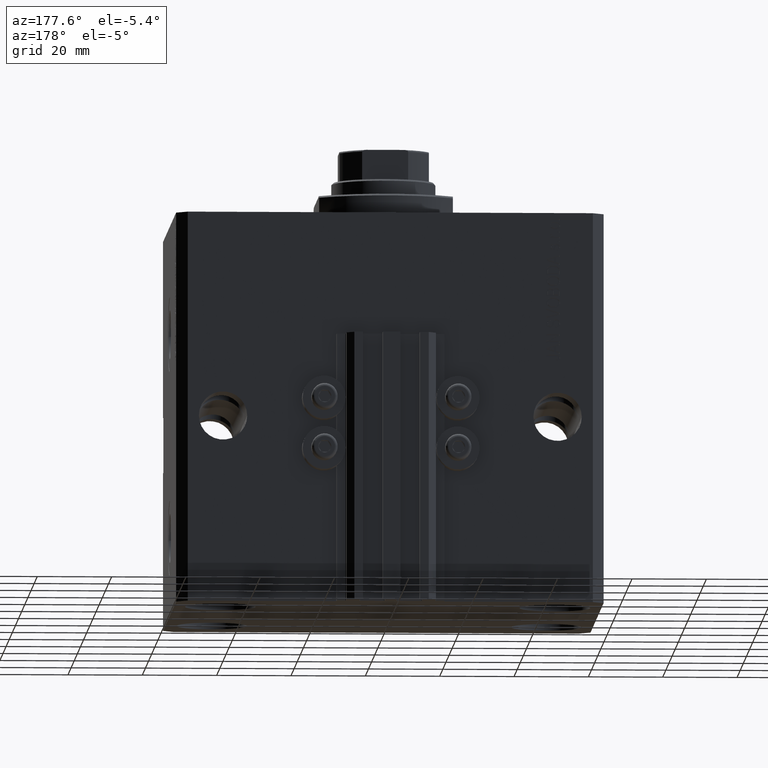
[diagram: clean part render]
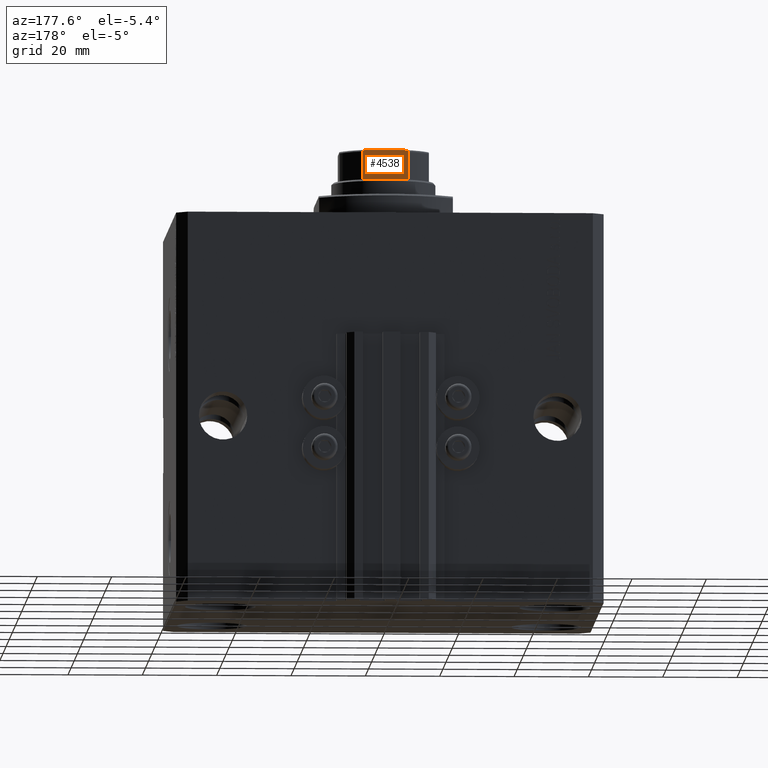
[diagram: same view with one face highlighted and labeled with its STEP entity id]
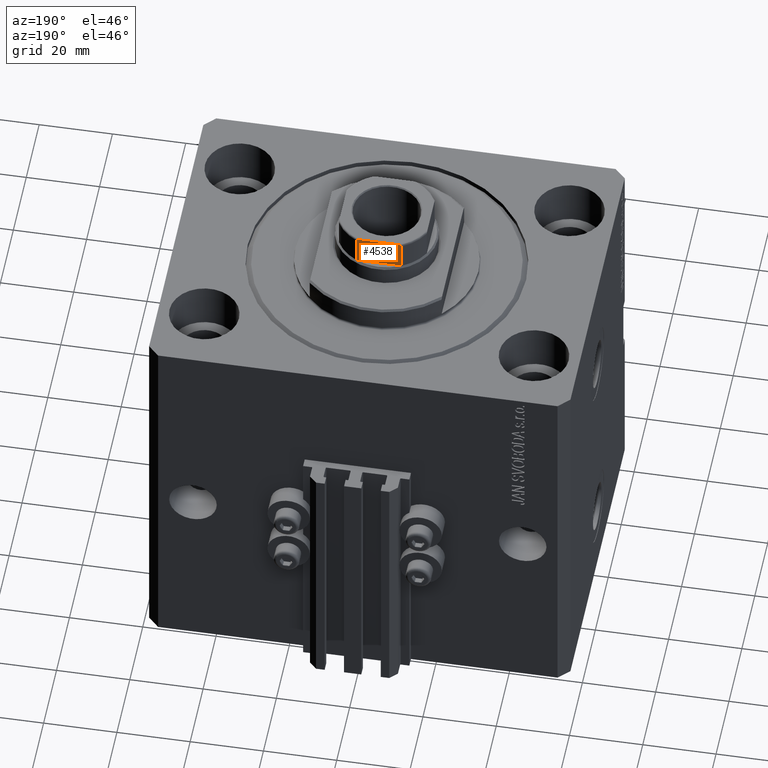
[diagram: same view with one face highlighted and labeled with its STEP entity id]
A machine part, auxiliary view. The second image highlights one B-rep face of the part: STEP entity #4538.
A second angle (auxiliary view) of the same face is appended — the face is thin or edge-on in the first view.
In plain terms, the highlighted planar face has unit normal (0, -1, 0).
Its self-contained STEP definition (entity closure, byte-faithful):
#2379 = CARTESIAN_POINT ( 'NONE',  ( -6.184658438426490434, 12.00000000000000000, -0.001000000000001000089 ) ) ;
#2707 = DIRECTION ( 'NONE',  ( 7.228014483236695816E-17, -1.000000000000000000, 0.000000000000000000 ) ) ;
#2750 = B_SPLINE_CURVE_WITH_KNOTS ( 'NONE', 3,
 ( #36997, #18086, #19783, #23264, #46151, #26517, #49156, #16053, #38441, #30733 ),
 .UNSPECIFIED., .F., .F.,
 ( 4, 2, 2, 2, 4 ),
 ( 1.734723475976807094E-18, 0.0006877128613558521411, 0.001031569292033771706, 0.001203497507372732573, 0.001375425722711693440 ),
 .UNSPECIFIED. ) ;
#3654 = VERTEX_POINT ( 'NONE', #20246 ) ;
#4538 = ADVANCED_FACE ( 'NONE', ( #45881 ), #44726, .F. ) ;
#6316 = CARTESIAN_POINT ( 'NONE',  ( -6.184658438426490434, 12.00000000000000000, 106.5999999999999943 ) ) ;
#6809 = CARTESIAN_POINT ( 'NONE',  ( -5.230795946637842420, 11.99999999999999645, 107.0999999999999943 ) ) ;
#7110 = VECTOR ( 'NONE', #39646, 1000.000000000000000 ) ;
#7112 = LINE ( 'NONE', #7600, #22533 ) ;
#7600 = CARTESIAN_POINT ( 'NONE',  ( -11.99999999999999822, 11.99999999999999822, 107.0999999999999943 ) ) ;
#7714 = ORIENTED_EDGE ( 'NONE', *, *, #8194, .T. ) ;
#8194 = EDGE_CURVE ( 'NONE', #24955, #40208, #36466, .T. ) ;
#9061 = CARTESIAN_POINT ( 'NONE',  ( -5.792513940493508429, 11.99999999999999822, 106.9846382036009373 ) ) ;
#9101 = DIRECTION ( 'NONE',  ( -0.000000000000000000, -0.000000000000000000, 1.000000000000000000 ) ) ;
#12787 = CARTESIAN_POINT ( 'NONE',  ( -6.046414714222231979, 11.99999999999999822, 106.8457872300293019 ) ) ;
#13298 = ORIENTED_EDGE ( 'NONE', *, *, #17869, .T. ) ;
#14033 = CARTESIAN_POINT ( 'NONE',  ( -5.000000000000001776, 11.99999999999999822, 107.0999999999999943 ) ) ;
#14505 = CARTESIAN_POINT ( 'NONE',  ( -5.458892612163326774, 11.99999999999999822, 107.0796099716497736 ) ) ;
#16053 = CARTESIAN_POINT ( 'NONE',  ( 6.160856115322540738, 12.00000000000000355, 106.7149782197479055 ) ) ;
#16525 = CARTESIAN_POINT ( 'NONE',  ( -6.161088279078732910, 12.00000000000000000, 106.7146234191510104 ) ) ;
#17869 = EDGE_CURVE ( 'NONE', #40208, #43715, #21471, .T. ) ;
#18086 = CARTESIAN_POINT ( 'NONE',  ( 5.230809753656818550, 11.99999999999999289, 107.0999999999999801 ) ) ;
#18198 = VECTOR ( 'NONE', #23213, 1000.000000000000000 ) ;
#19393 = ORIENTED_EDGE ( 'NONE', *, *, #22987, .T. ) ;
#19783 = CARTESIAN_POINT ( 'NONE',  ( 5.459934723612541951, 12.00000000000000000, 107.0794964115812036 ) ) ;
#20246 = CARTESIAN_POINT ( 'NONE',  ( 6.184658438426492211, 12.00000000000000178, 99.10000000000006537 ) ) ;
#20258 = LINE ( 'NONE', #24227, #7110 ) ;
#21471 = B_SPLINE_CURVE_WITH_KNOTS ( 'NONE', 3,
 ( #6316, #21488, #16525, #46863, #12787, #43131, #9061, #14505, #6809, #14033 ),
 .UNSPECIFIED., .F., .F.,
 ( 4, 2, 2, 2, 4 ),
 ( 0.000000000000000000, 0.0001740189231935435705, 0.0003480378463870871411, 0.0006960756927741721138, 0.001392151385548330567 ),
 .UNSPECIFIED. ) ;
#21488 = CARTESIAN_POINT ( 'NONE',  ( -6.184658438426491323, 12.00000000000000000, 106.6589344020393924 ) ) ;
#22123 = CARTESIAN_POINT ( 'NONE',  ( 5.000000000000002665, 12.00000000000000000, 107.0999999999999943 ) ) ;
#22533 = VECTOR ( 'NONE', #33982, 1000.000000000000000 ) ;
#22927 = CARTESIAN_POINT ( 'NONE',  ( -6.184658438426488658, 12.00000000000000000, 99.10000000000006537 ) ) ;
#22987 = EDGE_CURVE ( 'NONE', #29371, #41970, #2750, .T. ) ;
#23213 = DIRECTION ( 'NONE',  ( -0.000000000000000000, -0.000000000000000000, 1.000000000000000000 ) ) ;
#23236 = DIRECTION ( 'NONE',  ( 1.000000000000000000, 7.228014483236695816E-17, 0.000000000000000000 ) ) ;
#23264 = CARTESIAN_POINT ( 'NONE',  ( 5.793822051191360956, 11.99999999999999822, 106.9841735219943359 ) ) ;
#24227 = CARTESIAN_POINT ( 'NONE',  ( -11.99999999999999822, 11.99999999999999822, 99.09999999999999432 ) ) ;
#24955 = VERTEX_POINT ( 'NONE', #22927 ) ;
#26065 = CARTESIAN_POINT ( 'NONE',  ( -6.184658438426490434, 12.00000000000000000, 106.5999999999999943 ) ) ;
#26517 = CARTESIAN_POINT ( 'NONE',  ( 6.045866546018598520, 12.00000000000000178, 106.8461068616299485 ) ) ;
#28836 = AXIS2_PLACEMENT_3D ( 'NONE', #37032, #2707, #23236 ) ;
#29067 = VECTOR ( 'NONE', #9101, 1000.000000000000000 ) ;
#29371 = VERTEX_POINT ( 'NONE', #22123 ) ;
#29712 = EDGE_CURVE ( 'NONE', #3654, #41970, #29718, .T. ) ;
#29718 = LINE ( 'NONE', #45858, #18198 ) ;
#30733 = CARTESIAN_POINT ( 'NONE',  ( 6.184658438426490434, 11.99999999999999822, 106.5999999999999943 ) ) ;
#32449 = CARTESIAN_POINT ( 'NONE',  ( 6.184658438426490434, 11.99999999999999822, 106.5999999999999943 ) ) ;
#32883 = EDGE_CURVE ( 'NONE', #3654, #24955, #20258, .T. ) ;
#33227 = ORIENTED_EDGE ( 'NONE', *, *, #32883, .T. ) ;
#33982 = DIRECTION ( 'NONE',  ( -1.000000000000000000, -7.228014483236695816E-17, -0.000000000000000000 ) ) ;
#35319 = EDGE_LOOP ( 'NONE', ( #47409, #19393, #41093, #33227, #7714, #13298 ) ) ;
#36466 = LINE ( 'NONE', #2379, #29067 ) ;
#36997 = CARTESIAN_POINT ( 'NONE',  ( 5.000000000000002665, 12.00000000000000000, 107.0999999999999943 ) ) ;
#37032 = CARTESIAN_POINT ( 'NONE',  ( -11.99999999999999822, 11.99999999999999822, 107.0999999999999943 ) ) ;
#38441 = CARTESIAN_POINT ( 'NONE',  ( 6.184658438426495763, 12.00000000000000355, 106.6589821493407584 ) ) ;
#39646 = DIRECTION ( 'NONE',  ( -1.000000000000000000, -7.228014483236695816E-17, -0.000000000000000000 ) ) ;
#40208 = VERTEX_POINT ( 'NONE', #26065 ) ;
#41093 = ORIENTED_EDGE ( 'NONE', *, *, #29712, .F. ) ;
#41970 = VERTEX_POINT ( 'NONE', #32449 ) ;
#43131 = CARTESIAN_POINT ( 'NONE',  ( -5.900889097622411761, 12.00000000000000178, 106.9429613869932894 ) ) ;
#43461 = CARTESIAN_POINT ( 'NONE',  ( -5.000000000000001776, 11.99999999999999822, 107.0999999999999943 ) ) ;
#43715 = VERTEX_POINT ( 'NONE', #43461 ) ;
#44726 = PLANE ( 'NONE',  #28836 ) ;
#44780 = EDGE_CURVE ( 'NONE', #29371, #43715, #7112, .T. ) ;
#45858 = CARTESIAN_POINT ( 'NONE',  ( 6.184658438426490434, 11.99999999999999822, -0.001000000000001000089 ) ) ;
#45881 = FACE_OUTER_BOUND ( 'NONE', #35319, .T. ) ;
#46151 = CARTESIAN_POINT ( 'NONE',  ( 5.903192932991098374, 12.00000000000000000, 106.9415152347680333 ) ) ;
#46863 = CARTESIAN_POINT ( 'NONE',  ( -6.091003570118825650, 11.99999999999999822, 106.8080862465981227 ) ) ;
#47409 = ORIENTED_EDGE ( 'NONE', *, *, #44780, .F. ) ;
#49156 = CARTESIAN_POINT ( 'NONE',  ( 6.091027642353962435, 12.00000000000000355, 106.8080088155617347 ) ) ;